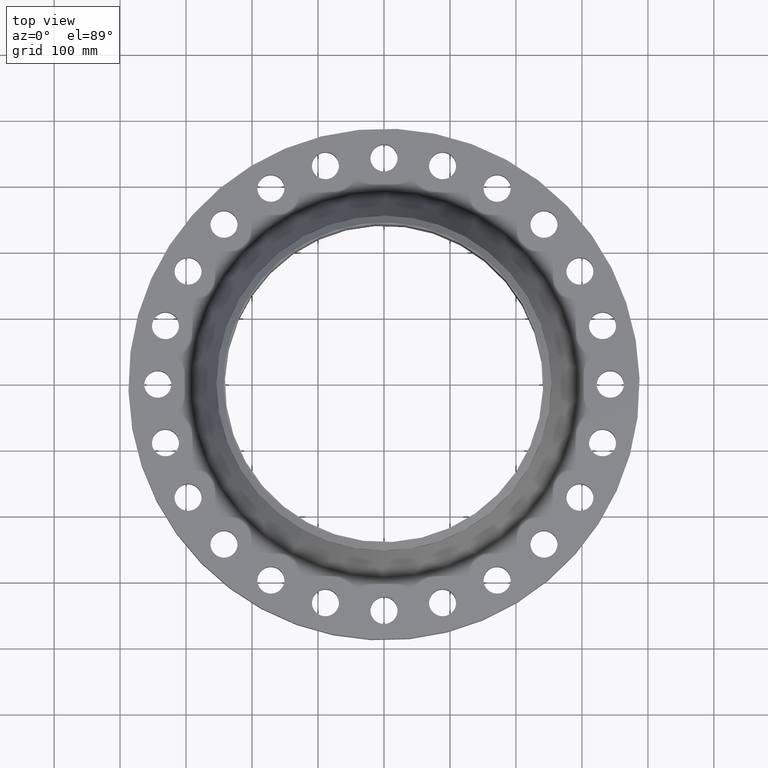
[diagram: clean part render]
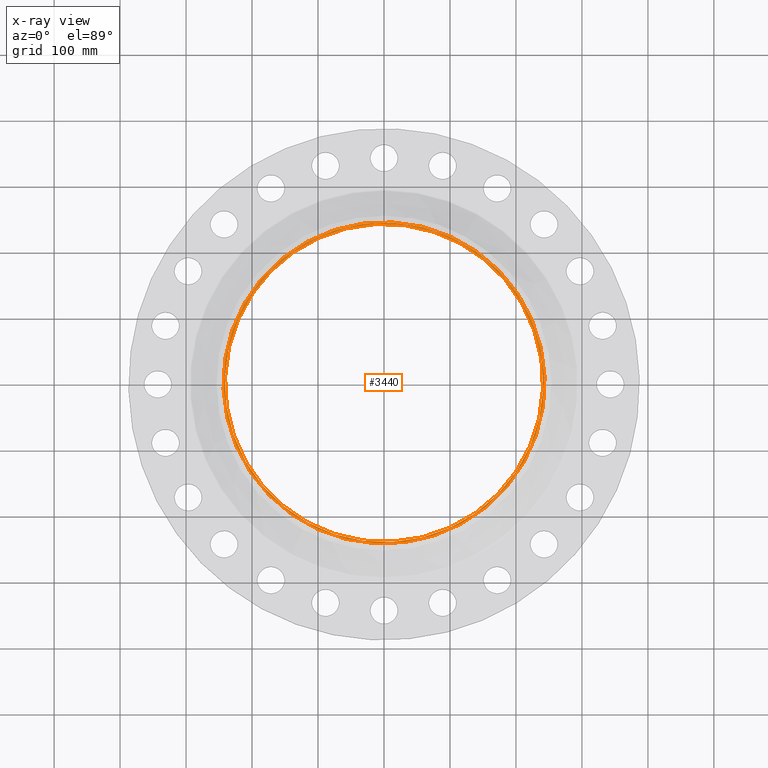
[diagram: x-ray — body ghosted, one internal face saturated and labeled with its STEP entity id]
A machine part, top view, then the same camera in x-ray: the body is ghosted and one INTERNAL B-rep face — a face not visible from any outside direction — is saturated and labeled: STEP entity #3440.
In plain terms, the highlighted planar face has unit normal (0, 0, -1).
Its self-contained STEP definition (entity closure, byte-faithful):
#2722=AXIS2_PLACEMENT_3D('Circle Axis2P3D',#2720,#2721,$) ;
#2760=AXIS2_PLACEMENT_3D('Circle Axis2P3D',#2758,#2759,$) ;
#3416=AXIS2_PLACEMENT_3D('Plane Axis2P3D',#3413,#3414,#3415) ;
#3420=AXIS2_PLACEMENT_3D('Circle Axis2P3D',#3418,#3419,$) ;
#3429=AXIS2_PLACEMENT_3D('Circle Axis2P3D',#3427,#3428,$) ;
#2720=CARTESIAN_POINT('Axis2P3D Location',(0.,0.,6.62000000003)) ;
#2724=CARTESIAN_POINT('Vertex',(4.55454261676,8.33703433799,6.62)) ;
#2726=CARTESIAN_POINT('Vertex',(-4.55454261676,-8.33703433799,6.62)) ;
#2758=CARTESIAN_POINT('Axis2P3D Location',(0.,0.,6.62)) ;
#3413=CARTESIAN_POINT('Axis2P3D Location',(0.,10.,6.62000000003)) ;
#3418=CARTESIAN_POINT('Axis2P3D Location',(-5.59482469102E-016,-1.1189649382E-015,6.62000000003)) ;
#3422=CARTESIAN_POINT('Vertex',(4.59229265917,-8.40613532712,6.62000000003)) ;
#3424=CARTESIAN_POINT('Vertex',(-4.59229265917,8.40613532712,6.62000000003)) ;
#3427=CARTESIAN_POINT('Axis2P3D Location',(5.59482469102E-016,3.35689481461E-015,6.62000000003)) ;
#2721=DIRECTION('Axis2P3D Direction',(-0.,0.,-0.0393700787402)) ;
#2759=DIRECTION('Axis2P3D Direction',(-0.,0.,-0.0393700787402)) ;
#3414=DIRECTION('Axis2P3D Direction',(0.,0.,-0.0393700787402)) ;
#3415=DIRECTION('Axis2P3D XDirection',(0.0393700787402,0.,0.)) ;
#3419=DIRECTION('Axis2P3D Direction',(0.,0.,-0.0393700787402)) ;
#3428=DIRECTION('Axis2P3D Direction',(0.,0.,-0.0393700787402)) ;
#3433=ORIENTED_EDGE('',*,*,#3426,.T.) ;
#3434=ORIENTED_EDGE('',*,*,#3431,.T.) ;
#3437=ORIENTED_EDGE('',*,*,#2762,.T.) ;
#3438=ORIENTED_EDGE('',*,*,#2728,.T.) ;
#3439=FACE_BOUND('',#3436,.T.) ;
#3440=ADVANCED_FACE('PartBody',(#3435,#3439),#3417,.F.) ;
#2723=CIRCLE('generated circle',#2722,9.50000000004) ;
#2761=CIRCLE('generated circle',#2760,9.50000000004) ;
#3421=CIRCLE('generated circle',#3420,9.5787401575) ;
#3430=CIRCLE('generated circle',#3429,9.5787401575) ;
#2728=EDGE_CURVE('',#2725,#2727,#2723,.T.) ;
#2762=EDGE_CURVE('',#2727,#2725,#2761,.T.) ;
#3426=EDGE_CURVE('',#3423,#3425,#3421,.F.) ;
#3431=EDGE_CURVE('',#3425,#3423,#3430,.F.) ;
#3432=EDGE_LOOP('',(#3433,#3434)) ;
#3436=EDGE_LOOP('',(#3437,#3438)) ;
#3435=FACE_OUTER_BOUND('',#3432,.T.) ;
#3417=PLANE('',#3416) ;
#2725=VERTEX_POINT('',#2724) ;
#2727=VERTEX_POINT('',#2726) ;
#3423=VERTEX_POINT('',#3422) ;
#3425=VERTEX_POINT('',#3424) ;